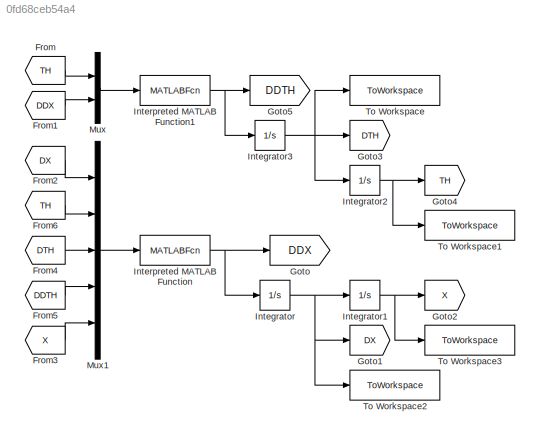
MODEL slx_0fd68ceb54a4
KIND model
CONFIG AbsTol = auto
CONFIG EnableMultiTasking = off
CONFIG FixedStep = auto
CONFIG MaxStep = 0.0001
CONFIG MinStep = 0.000001
CONFIG RelTol = 1e-3
CONFIG SampleTimeConstraint = Unconstrained
CONFIG SolverName = ode45
CONFIG StartTime = 0.0
CONFIG StopTime = 1
BLOCK [From] From
  GotoTag = TH
BLOCK [From] From1
  GotoTag = DDX
BLOCK [From] From2
  GotoTag = DX
BLOCK [From] From3
  GotoTag = X
BLOCK [From] From4
  GotoTag = DTH
BLOCK [From] From5
  GotoTag = DDTH
BLOCK [From] From6
  GotoTag = TH
BLOCK [Goto] Goto
  GotoTag = DDX
BLOCK [Goto] Goto1
  GotoTag = DX
BLOCK [Goto] Goto2
  GotoTag = X
BLOCK [Goto] Goto3
  GotoTag = DTH
BLOCK [Goto] Goto4
  GotoTag = TH
BLOCK [Goto] Goto5
  GotoTag = DDTH
BLOCK [Integrator] Integrator
  InitialCondition = dxd0
  Ports = [1, 1]
BLOCK [Integrator] Integrator1
  InitialCondition = xd0
  Ports = [1, 1]
BLOCK [Integrator] Integrator2
  InitialCondition = thd0
  Ports = [1, 1]
BLOCK [Integrator] Integrator3
  InitialCondition = dthd0
  Ports = [1, 1]
BLOCK [MATLABFcn] Interpreted MATLAB Function
  MATLABFcn = 1 / Me * (-b * u(1) + m * l * cos(u(2)) * u(4) - m * l * sin(u(2)) * u(3)^2 - k * u(5))
  OutputDimensions = 1
  Ports = [1, 1]
BLOCK [MATLABFcn] Interpreted MATLAB Function1
  MATLABFcn = (m * l / Ie) * (cos(u(1)) * u(2) + g * sin(u(1)))
  OutputDimensions = 1
  Ports = [1, 1]
BLOCK [Mux] Mux
  DisplayOption = bar
  Inputs = 2
  Ports = [2, 1]
BLOCK [Mux] Mux1
  DisplayOption = bar
  Inputs = 5
  Ports = [5, 1]
BLOCK [ToWorkspace] To Workspace
  FixptAsFi = on
  MaxDataPoints = inf
  Ports = [1]
  SampleTime = -1
  SaveFormat = Timeseries
  VariableName = dth
BLOCK [ToWorkspace] To Workspace1
  FixptAsFi = on
  MaxDataPoints = inf
  Ports = [1]
  SampleTime = -1
  SaveFormat = Timeseries
  VariableName = th
BLOCK [ToWorkspace] To Workspace2
  FixptAsFi = on
  MaxDataPoints = inf
  Ports = [1]
  SampleTime = -1
  SaveFormat = Timeseries
  VariableName = dx
BLOCK [ToWorkspace] To Workspace3
  FixptAsFi = on
  MaxDataPoints = inf
  Ports = [1]
  SampleTime = -1
  SaveFormat = Timeseries
  VariableName = x
LINE From1:1 -> Mux:2
LINE From2:1 -> Mux1:1
LINE From3:1 -> Mux1:5
LINE From4:1 -> Mux1:3
LINE From5:1 -> Mux1:4
LINE From6:1 -> Mux1:2
LINE From:1 -> Mux:1
NET Integrator1:1 -> Goto2:1, To Workspace3:1
NET Integrator2:1 -> Goto4:1, To Workspace1:1
NET Integrator3:1 -> Goto3:1, Integrator2:1, To Workspace:1
NET Integrator:1 -> Goto1:1, Integrator1:1, To Workspace2:1
NET Interpreted MATLAB Function1:1 -> Goto5:1, Integrator3:1
NET Interpreted MATLAB Function:1 -> Goto:1, Integrator:1
LINE Mux1:1 -> Interpreted MATLAB Function:1
LINE Mux:1 -> Interpreted MATLAB Function1:1
note: NET lines group one-source signal fan-out (src -> all destinations, sorted); 1:1 wires keep LINE
